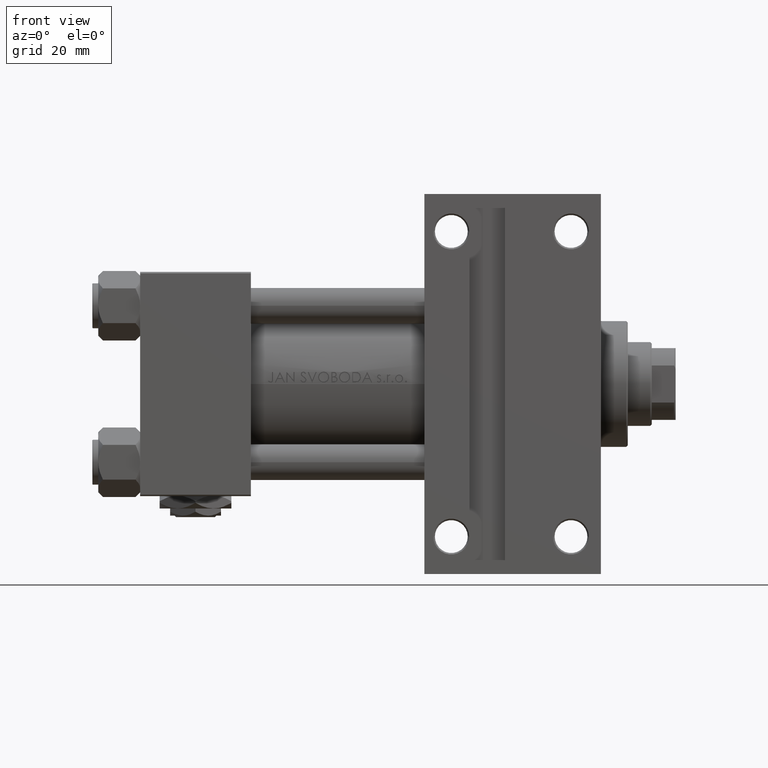
[diagram: clean part render]
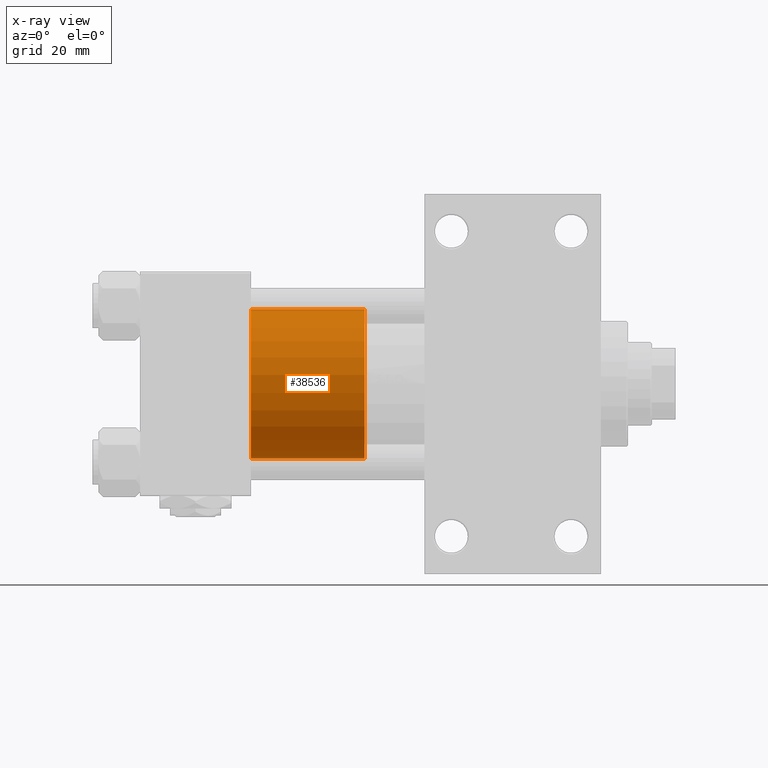
[diagram: x-ray — body ghosted, one internal face saturated and labeled with its STEP entity id]
A machine part, front view, then the same camera in x-ray: the body is ghosted and one INTERNAL B-rep face — a face not visible from any outside direction — is saturated and labeled: STEP entity #38536.
In plain terms, the highlighted cylindrical surface (partial cylindrical patch) has radius 25 mm, axis along (-1, 0, 0).
Its self-contained STEP definition (entity closure, byte-faithful):
#386 = DIRECTION ( 'NONE',  ( -0.000000000000000000, -0.000000000000000000, -1.000000000000000000 ) ) ;
#1410 = CIRCLE ( 'NONE', #18232, 25.00000000000000000 ) ;
#4158 = LINE ( 'NONE', #34823, #44758 ) ;
#4565 = DIRECTION ( 'NONE',  ( 0.000000000000000000, 0.000000000000000000, 1.000000000000000000 ) ) ;
#4908 = LINE ( 'NONE', #16458, #11999 ) ;
#6657 = EDGE_CURVE ( 'NONE', #12155, #48409, #4908, .T. ) ;
#6725 = ORIENTED_EDGE ( 'NONE', *, *, #7441, .T. ) ;
#6862 = AXIS2_PLACEMENT_3D ( 'NONE', #28141, #35418, #43694 ) ;
#7441 = EDGE_CURVE ( 'NONE', #48409, #15259, #21669, .T. ) ;
#9829 = VERTEX_POINT ( 'NONE', #23408 ) ;
#11999 = VECTOR ( 'NONE', #47104, 1000.000000000000000 ) ;
#12155 = VERTEX_POINT ( 'NONE', #20637 ) ;
#12809 = FACE_OUTER_BOUND ( 'NONE', #41562, .T. ) ;
#13119 = CARTESIAN_POINT ( 'NONE',  ( 0.000000000000000000, 0.000000000000000000, 38.00000000000000000 ) ) ;
#13693 = DIRECTION ( 'NONE',  ( 1.000000000000000000, 0.000000000000000000, 0.000000000000000000 ) ) ;
#15259 = VERTEX_POINT ( 'NONE', #15739 ) ;
#15739 = CARTESIAN_POINT ( 'NONE',  ( -25.00000000000000000, 0.000000000000000000, 0.000000000000000000 ) ) ;
#16458 = CARTESIAN_POINT ( 'NONE',  ( 25.00000000000000000, 3.061616997868383043E-15, 38.00000000000000000 ) ) ;
#18189 = DIRECTION ( 'NONE',  ( 0.000000000000000000, 0.000000000000000000, 1.000000000000000000 ) ) ;
#18232 = AXIS2_PLACEMENT_3D ( 'NONE', #13119, #4565, #47766 ) ;
#20637 = CARTESIAN_POINT ( 'NONE',  ( 25.00000000000000000, 3.061616997868383043E-15, 38.00000000000000000 ) ) ;
#21669 = CIRCLE ( 'NONE', #41717, 25.00000000000000000 ) ;
#22213 = ORIENTED_EDGE ( 'NONE', *, *, #6657, .T. ) ;
#23408 = CARTESIAN_POINT ( 'NONE',  ( -25.00000000000000000, 0.000000000000000000, 38.00000000000000000 ) ) ;
#25835 = EDGE_CURVE ( 'NONE', #12155, #9829, #1410, .T. ) ;
#27205 = EDGE_CURVE ( 'NONE', #9829, #15259, #4158, .T. ) ;
#28141 = CARTESIAN_POINT ( 'NONE',  ( 0.000000000000000000, 0.000000000000000000, 38.00000000000000000 ) ) ;
#29523 = CARTESIAN_POINT ( 'NONE',  ( 0.000000000000000000, 0.000000000000000000, 0.000000000000000000 ) ) ;
#31561 = ORIENTED_EDGE ( 'NONE', *, *, #27205, .F. ) ;
#34823 = CARTESIAN_POINT ( 'NONE',  ( -25.00000000000000000, 0.000000000000000000, 38.00000000000000000 ) ) ;
#35418 = DIRECTION ( 'NONE',  ( -0.000000000000000000, -0.000000000000000000, -1.000000000000000000 ) ) ;
#38536 = ADVANCED_FACE ( 'NONE', ( #12809 ), #46962, .T. ) ;
#41562 = EDGE_LOOP ( 'NONE', ( #41889, #22213, #6725, #31561 ) ) ;
#41717 = AXIS2_PLACEMENT_3D ( 'NONE', #29523, #18189, #13693 ) ;
#41889 = ORIENTED_EDGE ( 'NONE', *, *, #25835, .F. ) ;
#43694 = DIRECTION ( 'NONE',  ( -1.000000000000000000, 0.000000000000000000, 0.000000000000000000 ) ) ;
#44758 = VECTOR ( 'NONE', #386, 1000.000000000000000 ) ;
#46455 = CARTESIAN_POINT ( 'NONE',  ( 25.00000000000000000, 3.061616997868383043E-15, 0.000000000000000000 ) ) ;
#46962 = CYLINDRICAL_SURFACE ( 'NONE', #6862, 25.00000000000000000 ) ;
#47104 = DIRECTION ( 'NONE',  ( -0.000000000000000000, -0.000000000000000000, -1.000000000000000000 ) ) ;
#47766 = DIRECTION ( 'NONE',  ( 1.000000000000000000, 0.000000000000000000, 0.000000000000000000 ) ) ;
#48409 = VERTEX_POINT ( 'NONE', #46455 ) ;